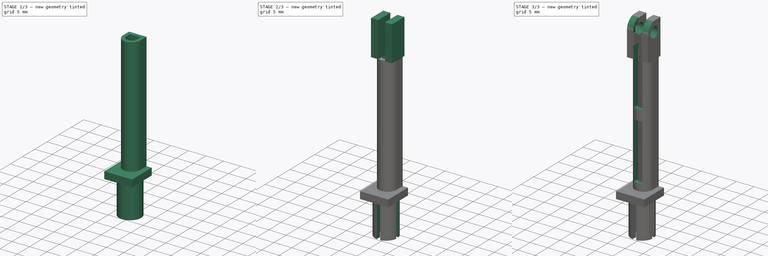
[diagram: build sequence overview — one tinted view per stage of 3, left to right]
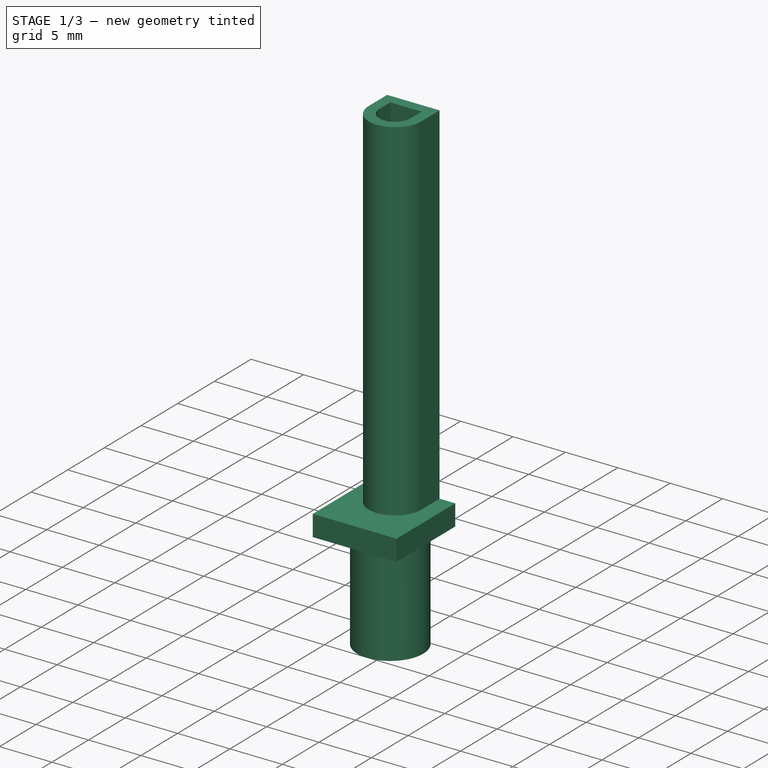
[diagram: stage 1 of 3 — iso view after this stage's code; geometry added in this stage tinted green]
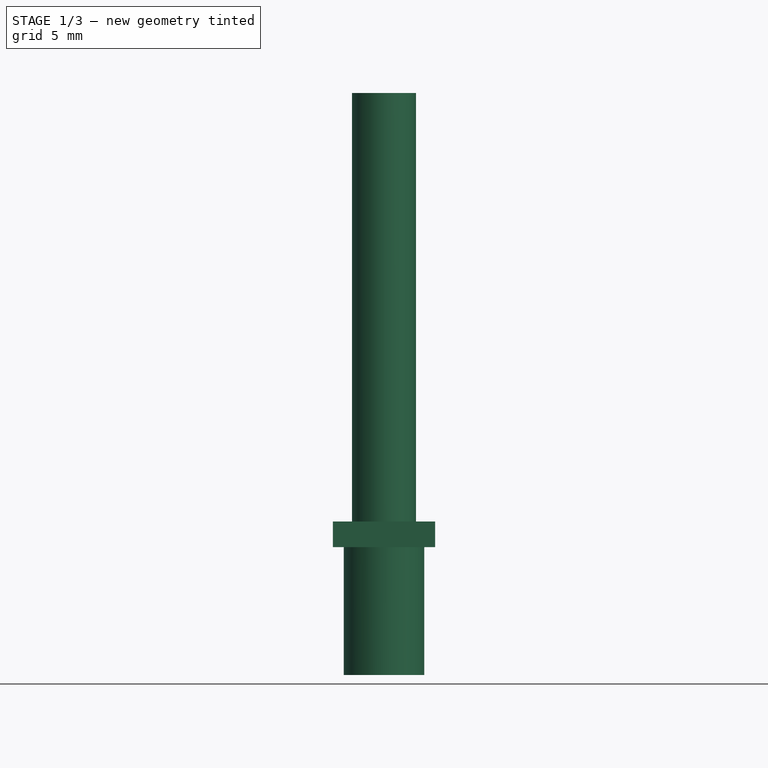
[diagram: stage 1 of 3 — front view after this stage's code; geometry added in this stage tinted green]
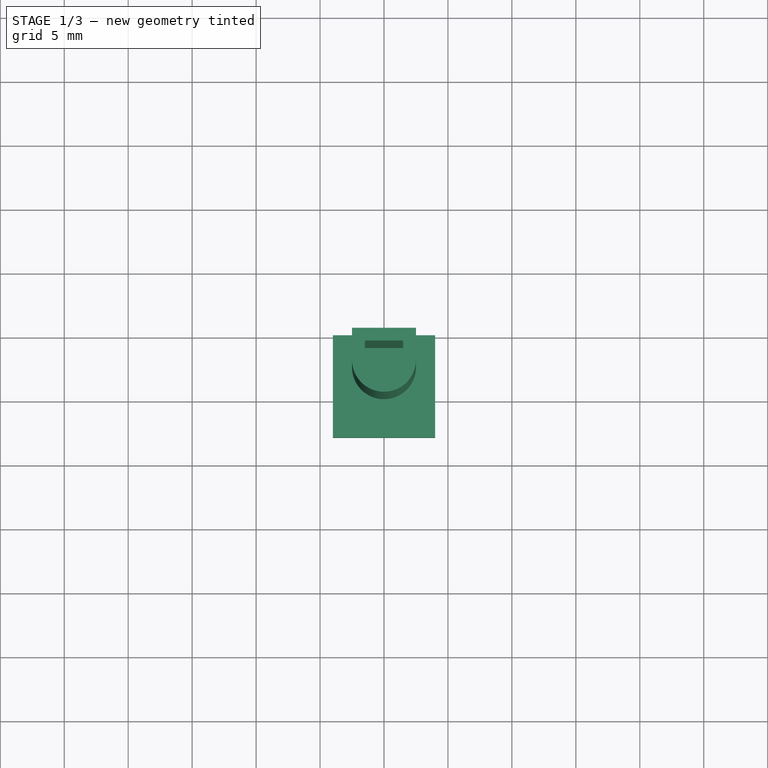
[diagram: stage 1 of 3 — top view after this stage's code; geometry added in this stage tinted green]
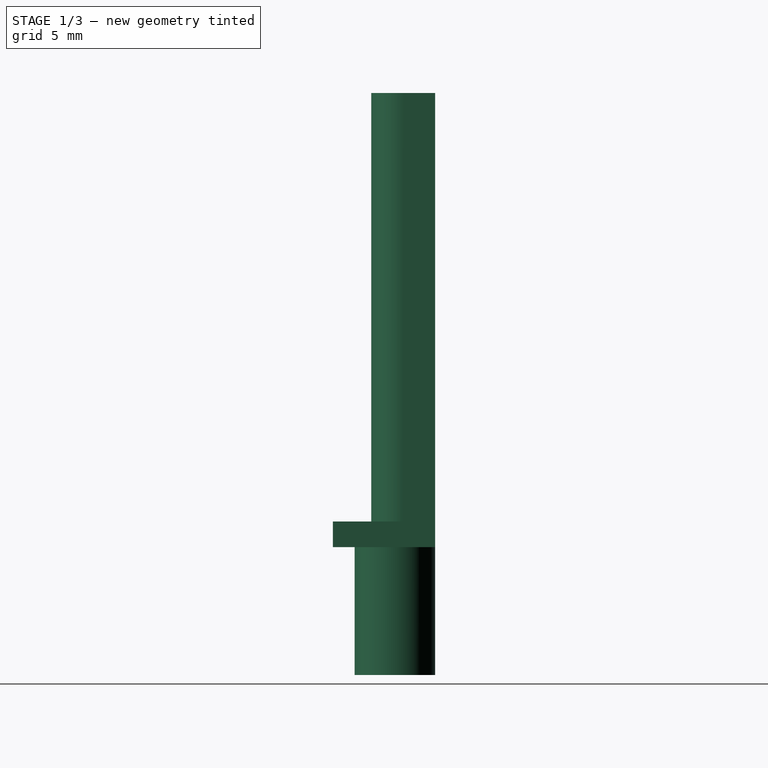
[diagram: stage 1 of 3 — right view after this stage's code; geometry added in this stage tinted green]
FCSTD DOCUMENT  (FreeCAD 0.19R24344 (Git))
Label: Lamp_post_40
Comment: Lamp post to be used with a 5mm LED lamp shade. The foot can be plugged into a 1/4" breadboard.
License: Creative Commons Attribution-NonCommercial-ShareAlike
LicenseURL: http://creativecommons.org/licenses/by-nc-sa/4.0/
objects: Sketcher::SketchObject×7, PartDesign::Pad×4, PartDesign::Pocket×3, PartDesign::CoordinateSystem×3, PartDesign::Fillet×1, PartDesign::Plane×1, PartDesign::Body×1, App::Part×1
note: 28 computed .brp shape members not serialized (recipe doc carries the construction recipe); baked Part::Feature solids carry a one-line shape summary decoded from their .brp

FEATURE [Sketcher::SketchObject] Sketch
  FullyConstrained = true
  MapMode = 5
  Support = -> [XY_Plane]
  sketch-geometry (9):
    g0: LineSegment StartX=-2.5 StartY=0 StartZ=0 EndX=2.5 EndY=0 EndZ=0
    g1: LineSegment StartX=2.5 StartY=0 StartZ=0 EndX=2.5 EndY=-2.5 EndZ=0
    g2: LineSegment StartX=-2.5 StartY=-2.5 StartZ=0 EndX=-2.5 EndY=0 EndZ=0
    g3: ArcOfCircle CenterX=1e-16 CenterY=-2.5 CenterZ=0 NormalX=0 NormalY=0 NormalZ=1 AngleXU=0 Radius=2.5 StartAngle=3.14159 EndAngle=4.71239
    g4: ArcOfCircle CenterX=1e-16 CenterY=-2.5 CenterZ=0 NormalX=0 NormalY=0 NormalZ=1 AngleXU=0 Radius=2.5 StartAngle=4.71239 EndAngle=6.28319
    g5: ArcOfCircle CenterX=1e-16 CenterY=-2.5 CenterZ=0 NormalX=0 NormalY=0 NormalZ=1 AngleXU=0 Radius=1.5 StartAngle=3.14159 EndAngle=6.28319
    g6: LineSegment StartX=-1.5 StartY=-2.5 StartZ=0 EndX=-1.5 EndY=-1 EndZ=0
    g7: LineSegment StartX=-1.5 StartY=-1 StartZ=0 EndX=1.5 EndY=-1 EndZ=0
    g8: LineSegment StartX=1.5 StartY=-1 StartZ=0 EndX=1.5 EndY=-2.5 EndZ=0
  constraints (25):
    c: Equal(g4,g3)
    c: Tangent(g4,g1) = 1.5708
    c: Tangent(g2,g3) = 1.5708
    c: Vertical(g1)
    c: Vertical(g2)
    c: Coincident(g2,g0)
    c: Coincident(g0,g1)
    c: Symmetric(g0,g0,g-2)
    c: Tangent(g4,g3) = -1.5708
    c: PointOnObject(g3,g-2)
    c: PointOnObject(g0,g-1)
    c: Distance(g0) = 5
    c: DistanceY(g3,g-1) = 5
    c: Coincident(g5,g3)
    c: Coincident(g6,g5)
    c: Vertical(g6)
    c: Coincident(g7,g6)
    c: Horizontal(g7)
    c: Coincident(g8,g7)
    c: Coincident(g8,g5)
    c: Vertical(g8)
    c: DistanceX(g0,g6) = 1
    c: DistanceY(g6,g0) = 1
    c: Angle(g5) = 3.14159
    c: Horizontal(g5,g1)
FEATURE [PartDesign::Pad] Pad
  Direction = (1,1,1)
  Length = 33.5
  Length2 = 100
  Profile = -> Sketch
  Type = 0
FEATURE [Sketcher::SketchObject] Sketch001
  FullyConstrained = true
  MapMode = 5
  Placement = pos=(0,0,0) rot=(1,0,0;3.14159rad)
  Support = -> [Pad]
  sketch-geometry (4):
    g0: LineSegment StartX=-4 StartY=0 StartZ=0 EndX=4 EndY=0 EndZ=0
    g1: LineSegment StartX=4 StartY=0 StartZ=0 EndX=4 EndY=8 EndZ=0
    g2: LineSegment StartX=4 StartY=8 StartZ=0 EndX=-4 EndY=8 EndZ=0
    g3: LineSegment StartX=-4 StartY=8 StartZ=0 EndX=-4 EndY=0 EndZ=0
  constraints (11):
    c: Coincident(g0,g1)
    c: Coincident(g1,g2)
    c: Coincident(g2,g3)
    c: Coincident(g3,g0)
    c: Horizontal(g2)
    c: Vertical(g1)
    c: Vertical(g3)
    c: PointOnObject(g0,g-1)
    c: Distance(g0) = 8
    c: Distance(g1) = 8
    c: Symmetric(g0,g0,g-2)
FEATURE [PartDesign::Pad] Pad001
  BaseFeature = -> Pad
  Direction = (1,1,1)
  Length = 2
  Length2 = 100
  Profile = -> Sketch001
  Type = 0
FEATURE [Sketcher::SketchObject] Sketch002
  ExternalGeometry = -> [Pad]
  FullyConstrained = true
  MapMode = 5
  Placement = pos=(0,0,0) rot=(1,0,0;3.14159rad)
  Support = -> [Pad]
  sketch-geometry (2):
    g0: Circle CenterX=0 CenterY=3.15 CenterZ=0 NormalX=0 NormalY=0 NormalZ=1 AngleXU=0 Radius=3.15
    g1: Circle CenterX=0 CenterY=3.15 CenterZ=0 NormalX=0 NormalY=0 NormalZ=1 AngleXU=0 Radius=1.85
  constraints (5):
    c: Diameter(g0) = 6.3
    c: Coincident(g1,g0)
    c: PointOnObject(g-4,g1)
    c: PointOnObject(g-1,g0)
    c: PointOnObject(g0,g-2)
FEATURE [PartDesign::Pad] Pad002
  BaseFeature = -> Pad001
  Direction = (1,1,1)
  Length = 12
  Length2 = 100
  Profile = -> Sketch002
  Type = 0
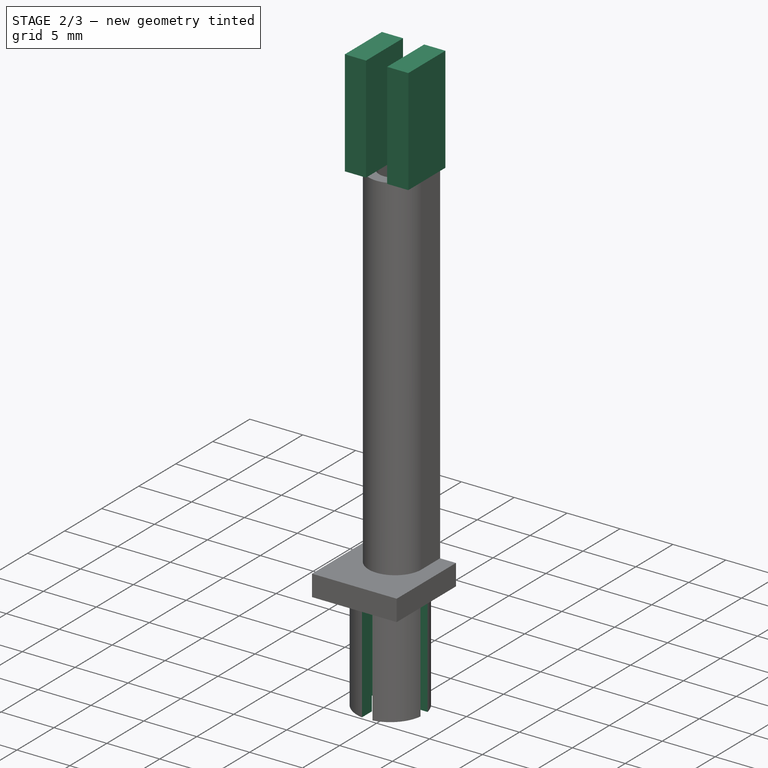
[diagram: stage 2 of 3 — iso view after this stage's code; geometry added in this stage tinted green]
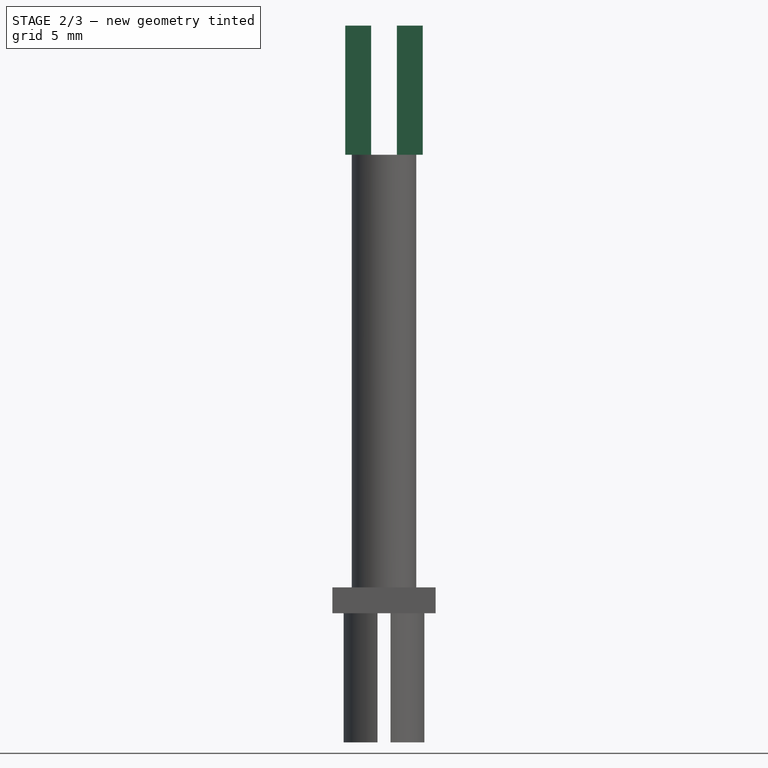
[diagram: stage 2 of 3 — front view after this stage's code; geometry added in this stage tinted green]
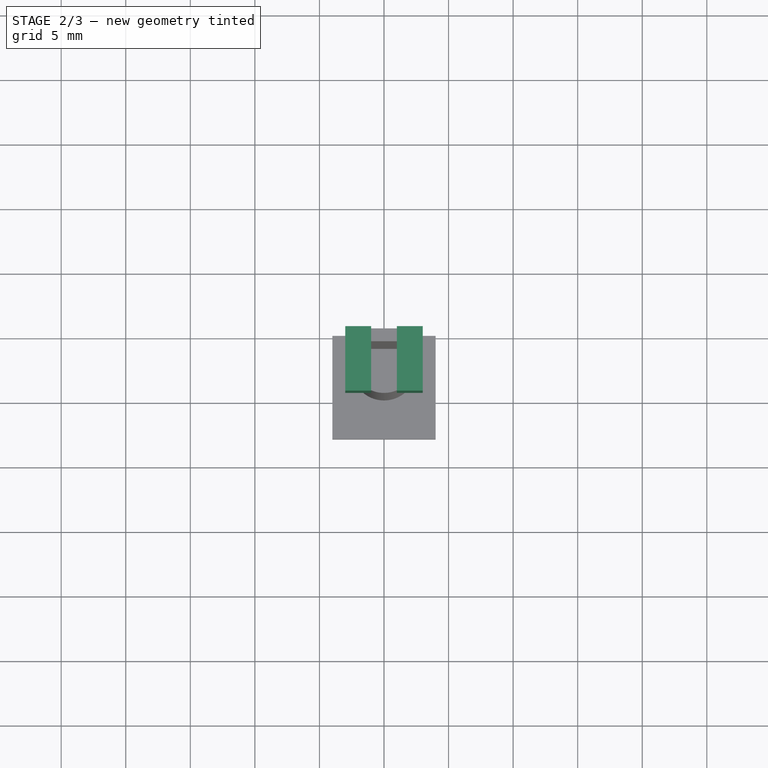
[diagram: stage 2 of 3 — top view after this stage's code; geometry added in this stage tinted green]
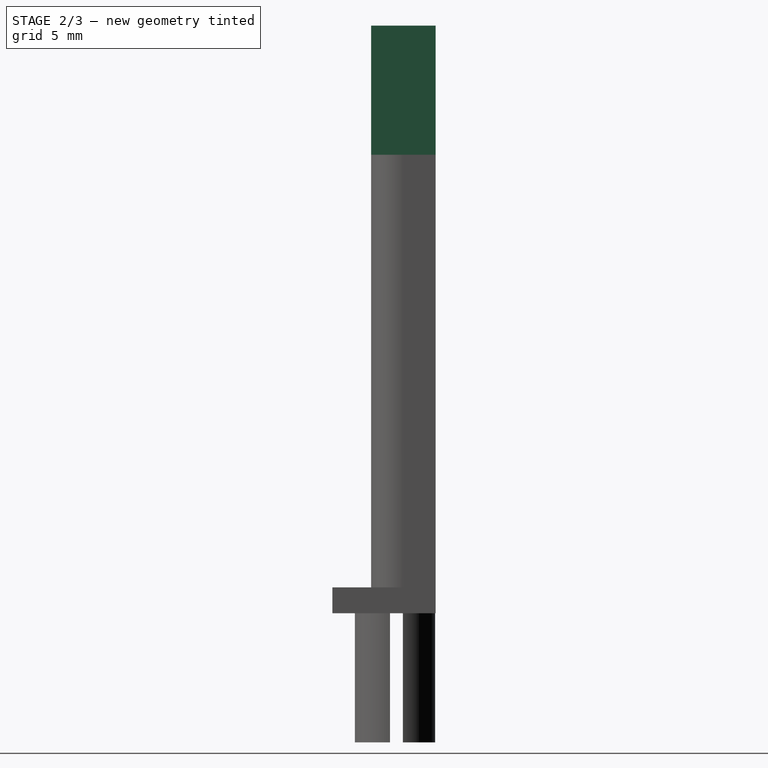
[diagram: stage 2 of 3 — right view after this stage's code; geometry added in this stage tinted green]
FEATURE [Sketcher::SketchObject] Sketch003
  FullyConstrained = true
  MapMode = 5
  Placement = pos=(0,0,-12) rot=(1,0,0;3.14159rad)
  Support = -> [Pad002]
  sketch-geometry (8):
    g0: LineSegment StartX=-0.5 StartY=7 StartZ=0 EndX=0.5 EndY=7 EndZ=0
    g1: LineSegment StartX=0.5 StartY=7 StartZ=0 EndX=0.5 EndY=0 EndZ=0
    g2: LineSegment StartX=0.5 StartY=0 StartZ=0 EndX=-0.5 EndY=0 EndZ=0
    g3: LineSegment StartX=-0.5 StartY=0 StartZ=0 EndX=-0.5 EndY=7 EndZ=0
    g4: LineSegment StartX=-3.5 StartY=3.54 StartZ=0 EndX=3.5 EndY=3.54 EndZ=0
    g5: LineSegment StartX=3.5 StartY=3.54 StartZ=0 EndX=3.5 EndY=2.54 EndZ=0
    g6: LineSegment StartX=3.5 StartY=2.54 StartZ=0 EndX=-3.5 EndY=2.54 EndZ=0
    g7: LineSegment StartX=-3.5 StartY=2.54 StartZ=0 EndX=-3.5 EndY=3.54 EndZ=0
  constraints (22):
    c: Coincident(g0,g1)
    c: Coincident(g1,g2)
    c: Coincident(g2,g3)
    c: Coincident(g3,g0)
    c: Horizontal(g2)
    c: Vertical(g1)
    c: Vertical(g3)
    c: PointOnObject(g1,g-1)
    c: Symmetric(g0,g0,g-2)
    c: Distance(g3) = 7
    c: Distance(g0) = 1
    c: Coincident(g4,g5)
    c: Coincident(g5,g6)
    c: Coincident(g6,g7)
    c: Coincident(g7,g4)
    c: Horizontal(g6)
    c: Vertical(g5)
    c: Vertical(g7)
    c: Distance(g4) = 7
    c: Symmetric(g4,g4,g-2)
    c: DistanceY(g-1,g5) = 2.54
    c: Distance(g5) = 1
FEATURE [PartDesign::Pocket] Pocket
  BaseFeature = -> Pad002
  Length = 10
  Length2 = 100
  Profile = -> Sketch003
  Type = 0
FEATURE [Sketcher::SketchObject] Sketch004
  ExternalGeometry = -> [Pocket]
  FullyConstrained = true
  MapMode = 5
  Placement = pos=(0,0,33.5) rot=(0,0,1;0rad)
  Support = -> [Pocket]
  sketch-geometry (8):
    g0: LineSegment StartX=-3 StartY=0 StartZ=0 EndX=-1 EndY=0 EndZ=0
    g1: LineSegment StartX=-1 StartY=0 StartZ=0 EndX=-1 EndY=-5 EndZ=0
    g2: LineSegment StartX=-1 StartY=-5 StartZ=0 EndX=-3 EndY=-5 EndZ=0
    g3: LineSegment StartX=-3 StartY=-5 StartZ=0 EndX=-3 EndY=0 EndZ=0
    g4: LineSegment StartX=3 StartY=0 StartZ=0 EndX=1 EndY=0 EndZ=0
    g5: LineSegment StartX=1 StartY=0 StartZ=0 EndX=1 EndY=-5 EndZ=0
    g6: LineSegment StartX=1 StartY=-5 StartZ=0 EndX=3 EndY=-5 EndZ=0
    g7: LineSegment StartX=3 StartY=-5 StartZ=0 EndX=3 EndY=0 EndZ=0
  constraints (23):
    c: Coincident(g0,g1)
    c: Coincident(g1,g2)
    c: Coincident(g2,g3)
    c: Coincident(g3,g0)
    c: Horizontal(g0)
    c: Horizontal(g2)
    c: Vertical(g1)
    c: Vertical(g3)
    c: Coincident(g4,g5)
    c: Coincident(g5,g6)
    c: Coincident(g6,g7)
    c: Coincident(g7,g4)
    c: Horizontal(g4)
    c: Horizontal(g6)
    c: Vertical(g5)
    c: Vertical(g7)
    c: PointOnObject(g4,g-1)
    c: Symmetric(g0,g4,g-2)
    c: DistanceX(g0,g4) = 2
    c: Distance(g2) = 2
    c: Distance(g6) = 2
    c: Horizontal(g5,g1)
    c: Distance(g3) = 5
FEATURE [PartDesign::Pad] Pad003
  BaseFeature = -> Pocket
  Direction = (1,1,1)
  Length = 10
  Length2 = 100
  Profile = -> Sketch004
  Type = 0
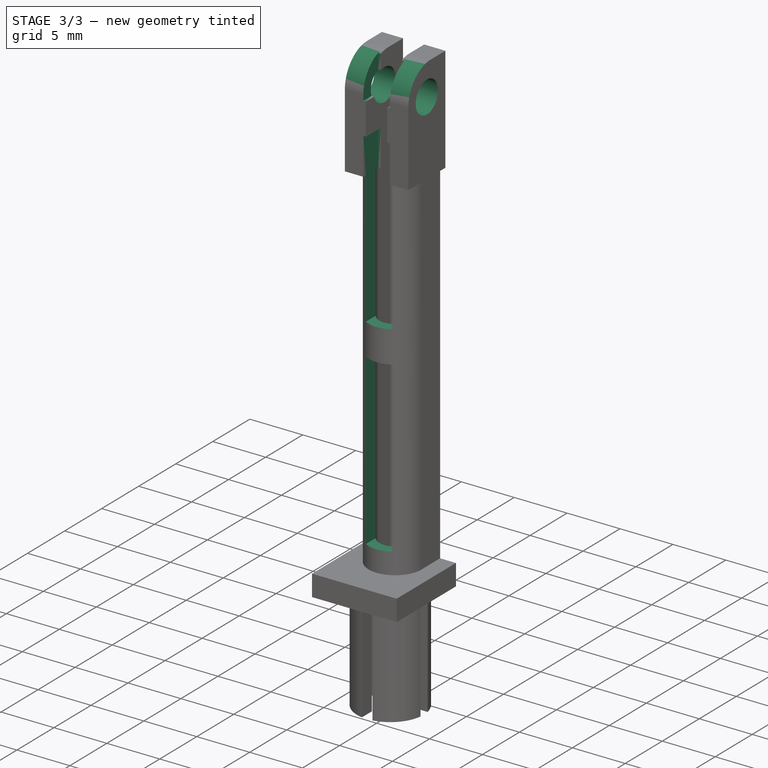
[diagram: stage 3 of 3 — iso view after this stage's code; geometry added in this stage tinted green]
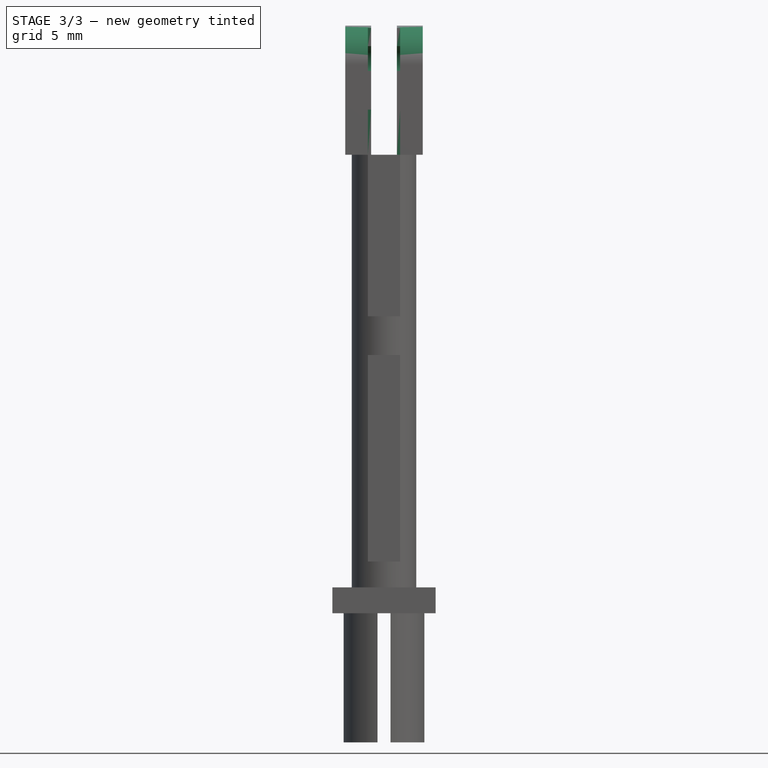
[diagram: stage 3 of 3 — front view after this stage's code; geometry added in this stage tinted green]
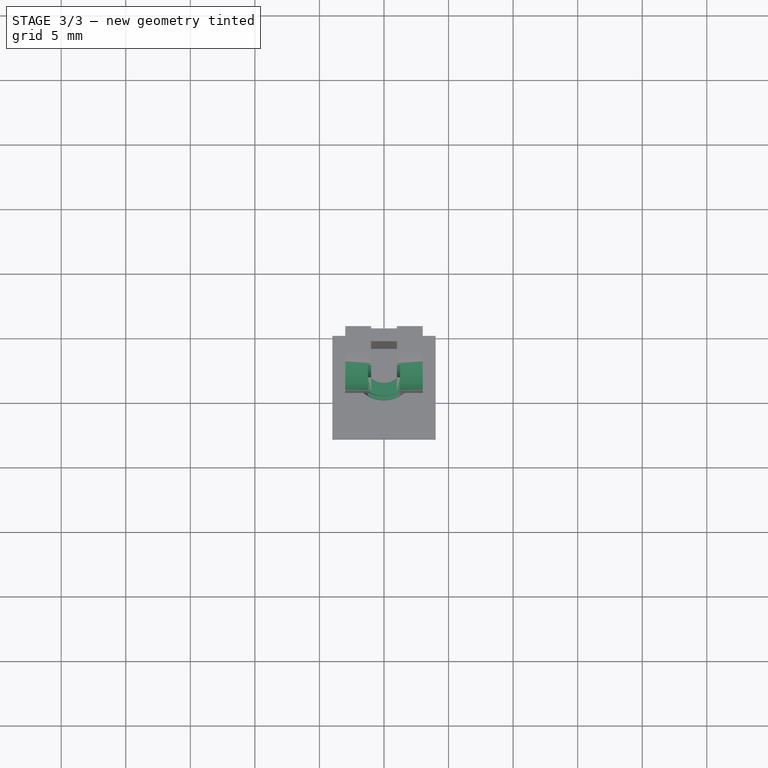
[diagram: stage 3 of 3 — top view after this stage's code; geometry added in this stage tinted green]
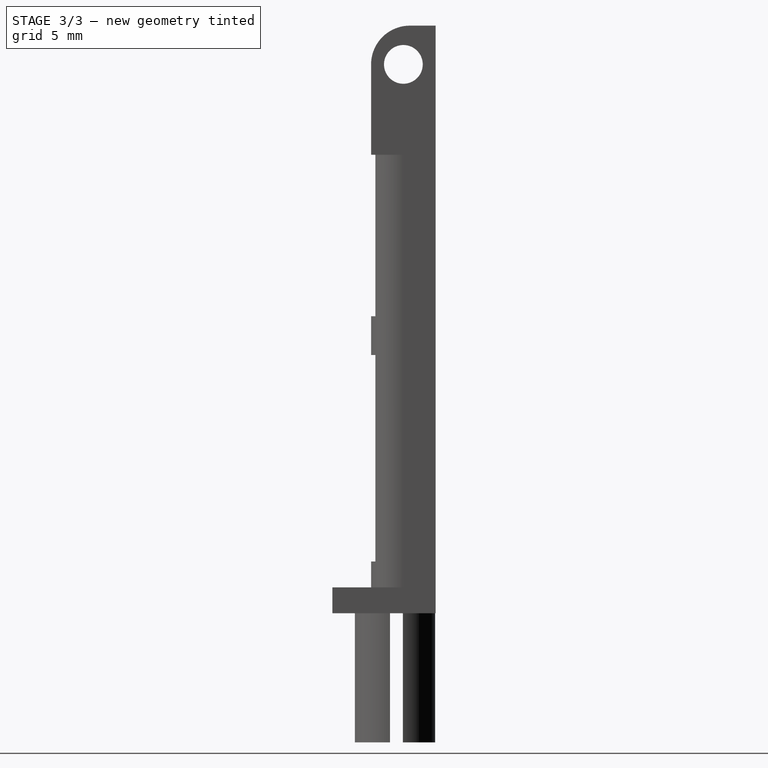
[diagram: stage 3 of 3 — right view after this stage's code; geometry added in this stage tinted green]
FEATURE [PartDesign::Fillet] Fillet
  Base = -> Pad003 [Edge101,Edge113]
  BaseFeature = -> Pad003
  Radius = 3
  SupportTransform = false
FEATURE [Sketcher::SketchObject] Sketch005
  ExternalGeometry = -> [Fillet]
  FullyConstrained = true
  MapMode = 5
  Placement = pos=(-3,0,0) rot=(0.57735,-0.57735,-0.57735;2.0944rad)
  Support = -> [Fillet]
  sketch-geometry (1):
    g0: Circle CenterX=2.5 CenterY=40.5 CenterZ=0 NormalX=0 NormalY=0 NormalZ=1 AngleXU=0 Radius=1.5
  constraints (3):
    c: Diameter(g0) = 3
    c: DistanceX(g-1,g0) = 2.5
    c: DistanceY(g0,g-3) = 3
FEATURE [PartDesign::Pocket] Pocket001
  BaseFeature = -> Fillet
  Length = 5
  Length2 = 100
  Profile = -> Sketch005
  Type = 1
FEATURE [PartDesign::Plane] DatumPlane
  AttachmentOffset = pos=(0,0,0) rot=(1,0,0;1.5708rad)
  Length = 60
  MapMode = 7
  Placement = pos=(0,-5,0) rot=(0,0.707107,-0.707107;3.14159rad)
  ResizeMode = 0
  Support = -> [Pocket001]
  Width = 60
FEATURE [Sketcher::SketchObject] Sketch006
  FullyConstrained = true
  MapMode = 5
  Placement = pos=(0,-5,0) rot=(0,0.707107,-0.707107;3.14159rad)
  Support = -> [DatumPlane]
  sketch-geometry (16):
    g0: LineSegment StartX=-1.25 StartY=-2 StartZ=0 EndX=1.25 EndY=-2 EndZ=0
    g1: LineSegment StartX=1.25 StartY=-2 StartZ=0 EndX=1.25 EndY=-18 EndZ=0
    g2: LineSegment StartX=1.25 StartY=-18 StartZ=0 EndX=-1.25 EndY=-18 EndZ=0
    g3: LineSegment StartX=-1.25 StartY=-18 StartZ=0 EndX=-1.25 EndY=-2 EndZ=0
    g4: LineSegment StartX=-1.25 StartY=-21 StartZ=0 EndX=1.25 EndY=-21 EndZ=0
    g5: LineSegment StartX=1.25 StartY=-21 StartZ=0 EndX=1.25 EndY=-37 EndZ=0
    g6: LineSegment StartX=1.25 StartY=-37 StartZ=0 EndX=-1.25 EndY=-37 EndZ=0
    g7: LineSegment StartX=-1.25 StartY=-37 StartZ=0 EndX=-1.25 EndY=-21 EndZ=0
    g8: LineSegment StartX=-1.25 StartY=-40 StartZ=0 EndX=1.25 EndY=-40 EndZ=0
    g9: LineSegment StartX=1.25 StartY=-40 StartZ=0 EndX=1.25 EndY=-56 EndZ=0
    g10: LineSegment StartX=1.25 StartY=-56 StartZ=0 EndX=-1.25 EndY=-56 EndZ=0
    g11: LineSegment StartX=-1.25 StartY=-56 StartZ=0 EndX=-1.25 EndY=-40 EndZ=0
    g12: LineSegment StartX=-1.25 StartY=-59 StartZ=0 EndX=1.25 EndY=-59 EndZ=0
    g13: LineSegment StartX=1.25 StartY=-59 StartZ=0 EndX=1.25 EndY=-75 EndZ=0
    g14: LineSegment StartX=1.25 StartY=-75 StartZ=0 EndX=-1.25 EndY=-75 EndZ=0
    g15: LineSegment StartX=-1.25 StartY=-75 StartZ=0 EndX=-1.25 EndY=-59 EndZ=0
  constraints (44):
    c: Coincident(g0,g1)
    c: Coincident(g1,g2)
    c: Coincident(g2,g3)
    c: Coincident(g3,g0)
    c: Horizontal(g0)
    c: Vertical(g1)
    c: Vertical(g3)
    c: Coincident(g4,g5)
    c: Coincident(g5,g6)
    c: Coincident(g6,g7)
    c: Coincident(g7,g4)
    c: Horizontal(g4)
    c: Vertical(g5)
    c: Vertical(g7)
    c: Coincident(g8,g9)
    c: Coincident(g9,g10)
    c: Coincident(g10,g11)
    c: Coincident(g11,g8)
    c: Horizontal(g8)
    c: Vertical(g9)
    c: Vertical(g11)
    c: Coincident(g12,g13)
    c: Coincident(g13,g14)
    c: Coincident(g14,g15)
    c: Coincident(g15,g12)
    c: Horizontal(g12)
    c: Vertical(g13)
    c: Vertical(g15)
    c: Equal(g13,g9)
    c: Equal(g9,g5)
    c: Equal(g5,g1)
    c: Distance(g1) = 16
    c: Distance(g9,g12) = 3
    c: Distance(g8,g5) = 3
    c: Distance(g1,g4) = 3
    c: Equal(g2,g6)
    c: Equal(g6,g10)
    c: Equal(g10,g14)
    c: Symmetric(g14,g13,g-2)
    c: Symmetric(g10,g9,g-2)
    c: Symmetric(g5,g6,g-2)
    c: Symmetric(g1,g2,g-2)
    c: Distance(g0) = 2.5
    c: DistanceY(g0,g-1) = 2
FEATURE [PartDesign::Pocket] Pocket002
  BaseFeature = -> Pocket001
  Length = 2
  Length2 = 100
  Profile = -> Sketch006
  Type = 0
FEATURE [PartDesign::Body] Body
  Group = -> [Sketch,Pad,Sketch001,Pad001,Sketch002,Pad002,Sketch003,Pocket,Sketch004,Pad003,Fillet,Sketch005,Pocket001,DatumPlane,Sketch006,Pocket002]
  Origin = -> Origin
  Tip = -> Pocket002
FEATURE [PartDesign::CoordinateSystem] LCS_0
  AttacherType = Attacher::AttachEngine3D
  MapMode = 2
  Support = -> [X_Axis001]
FEATURE [PartDesign::CoordinateSystem] LCS_Base
  AttacherType = Attacher::AttachEngine3D
  MapMode = 45
  Placement = pos=(1.6e-15,-3.09644,-2) rot=(0,0,1;0rad)
  Support = -> [Pocket002]
FEATURE [PartDesign::CoordinateSystem] LCS_Shade
  AttacherType = Attacher::AttachEngine3D
  MapMode = 11
  Placement = pos=(1,-2.5,40.5) rot=(-0.5,-0.707107,0.5;1.91063rad)
  Support = -> [Pocket002]
FEATURE [App::Part] LampPost  label="lamp_post_40"
  Group = -> [LCS_0,Body,LCS_Base,LCS_Shade]
  Origin = -> Origin001
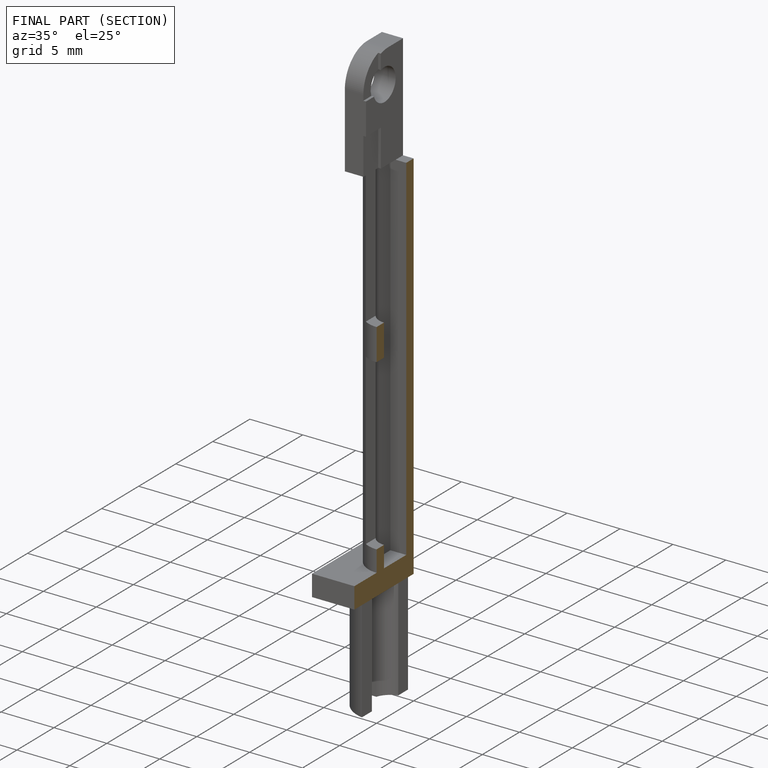
[diagram: finished part — half-section view (interior)]
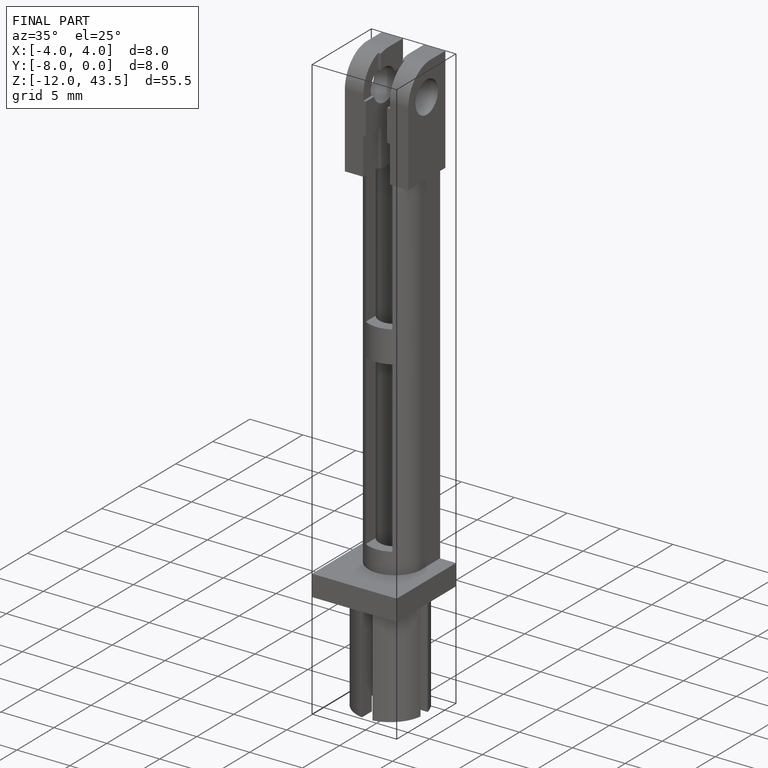
[diagram: finished part — iso view with bounding-box wireframe]
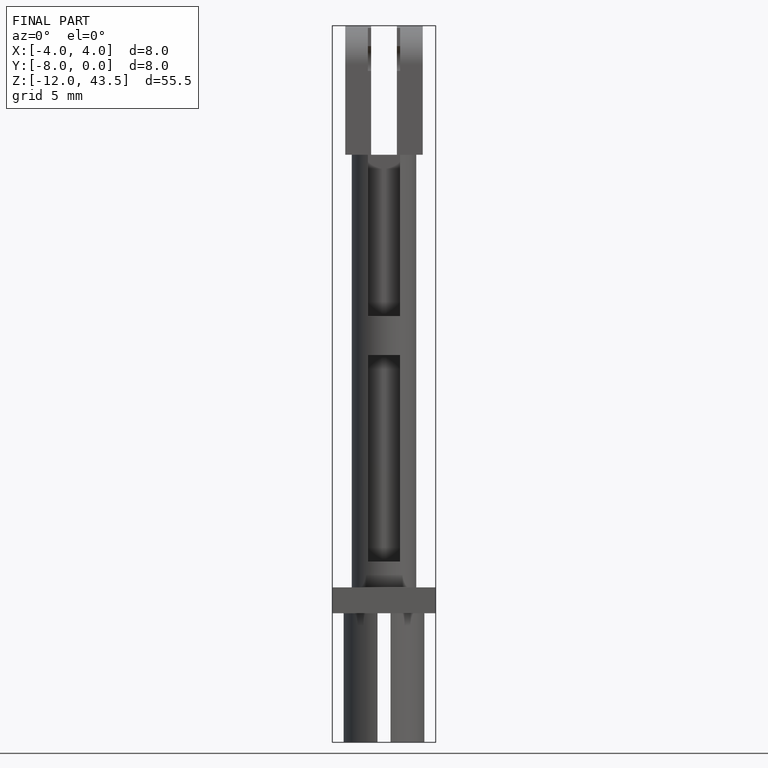
[diagram: finished part — front view with bounding-box wireframe]
